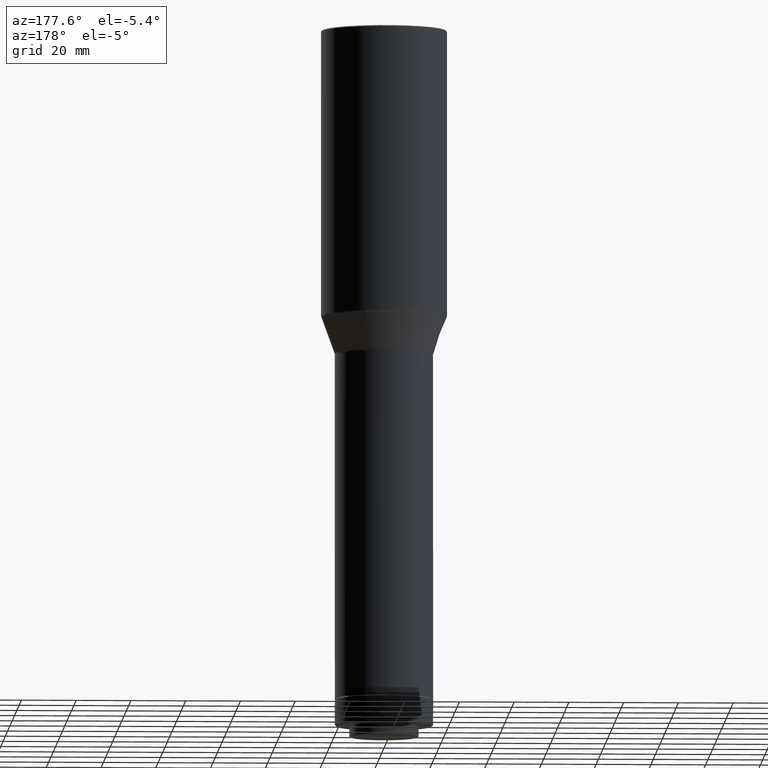
[diagram: clean part render]
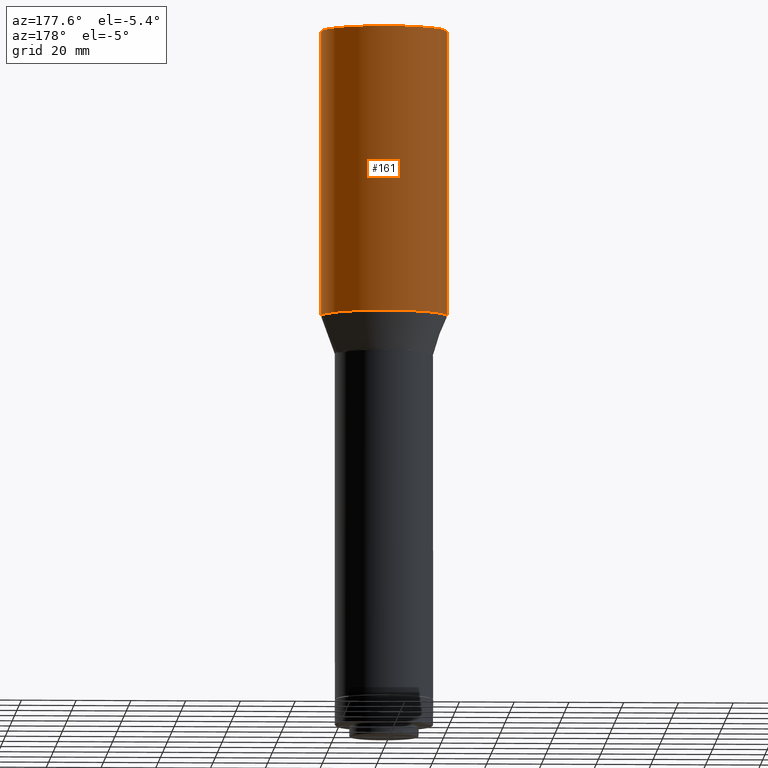
[diagram: same view with one face highlighted and labeled with its STEP entity id]
A machine part, auxiliary view. The second image highlights one B-rep face of the part: STEP entity #161.
In plain terms, the highlighted cylindrical surface (bore or boss wall) has radius 23 mm, axis along (-0, -0, 1).
Its self-contained STEP definition (entity closure, byte-faithful):
#98 = DIRECTION ( 'NONE',  ( 0.000000000000000000, -1.000000000000000000, 0.000000000000000000 ) ) ;
#105 = FACE_OUTER_BOUND ( 'NONE', #864, .T. ) ;
#126 = CIRCLE ( 'NONE', #908, 23.00000000000000000 ) ;
#159 = CARTESIAN_POINT ( 'NONE',  ( 1.909536233141016293E-15, -22.99999999999998579, -394.3000000000000114 ) ) ;
#161 = ADVANCED_FACE ( 'NONE', ( #609, #105 ), #339, .T. ) ;
#167 = VERTEX_POINT ( 'NONE', #159 ) ;
#313 = DIRECTION ( 'NONE',  ( -3.081487911019577365E-33, -2.929593744247951149E-19, 1.000000000000000000 ) ) ;
#318 = VERTEX_POINT ( 'NONE', #422 ) ;
#339 = CYLINDRICAL_SURFACE ( 'NONE', #511, 23.00000000000000000 ) ;
#422 = CARTESIAN_POINT ( 'NONE',  ( 1.909536233141016687E-15, -22.99999999999998579, -498.4914570192916017 ) ) ;
#511 = AXIS2_PLACEMENT_3D ( 'NONE', #705, #313, #98 ) ;
#513 = CARTESIAN_POINT ( 'NONE',  ( 1.909536233141016687E-15, 1.318445938195182547E-14, -498.4914570192916017 ) ) ;
#538 = ORIENTED_EDGE ( 'NONE', *, *, #1304, .T. ) ;
#587 = ORIENTED_EDGE ( 'NONE', *, *, #830, .T. ) ;
#609 = FACE_OUTER_BOUND ( 'NONE', #1317, .T. ) ;
#705 = CARTESIAN_POINT ( 'NONE',  ( 1.909536233141016293E-15, 1.315384763007071762E-14, -394.0000000000000000 ) ) ;
#827 = CIRCLE ( 'NONE', #1338, 23.00000000000000000 ) ;
#830 = EDGE_CURVE ( 'NONE', #167, #167, #126, .T. ) ;
#864 = EDGE_LOOP ( 'NONE', ( #587 ) ) ;
#908 = AXIS2_PLACEMENT_3D ( 'NONE', #1171, #1064, #971 ) ;
#971 = DIRECTION ( 'NONE',  ( 0.000000000000000000, -1.000000000000000000, 0.000000000000000000 ) ) ;
#1064 = DIRECTION ( 'NONE',  ( 3.081487911019577365E-33, 2.929593744247951149E-19, -1.000000000000000000 ) ) ;
#1150 = DIRECTION ( 'NONE',  ( 0.000000000000000000, -1.000000000000000000, 0.000000000000000000 ) ) ;
#1154 = DIRECTION ( 'NONE',  ( -3.081487911019577365E-33, -2.929593744247951149E-19, 1.000000000000000000 ) ) ;
#1171 = CARTESIAN_POINT ( 'NONE',  ( 1.909536233141016293E-15, 1.315393551788304535E-14, -394.3000000000000114 ) ) ;
#1304 = EDGE_CURVE ( 'NONE', #318, #318, #827, .T. ) ;
#1317 = EDGE_LOOP ( 'NONE', ( #538 ) ) ;
#1338 = AXIS2_PLACEMENT_3D ( 'NONE', #513, #1154, #1150 ) ;